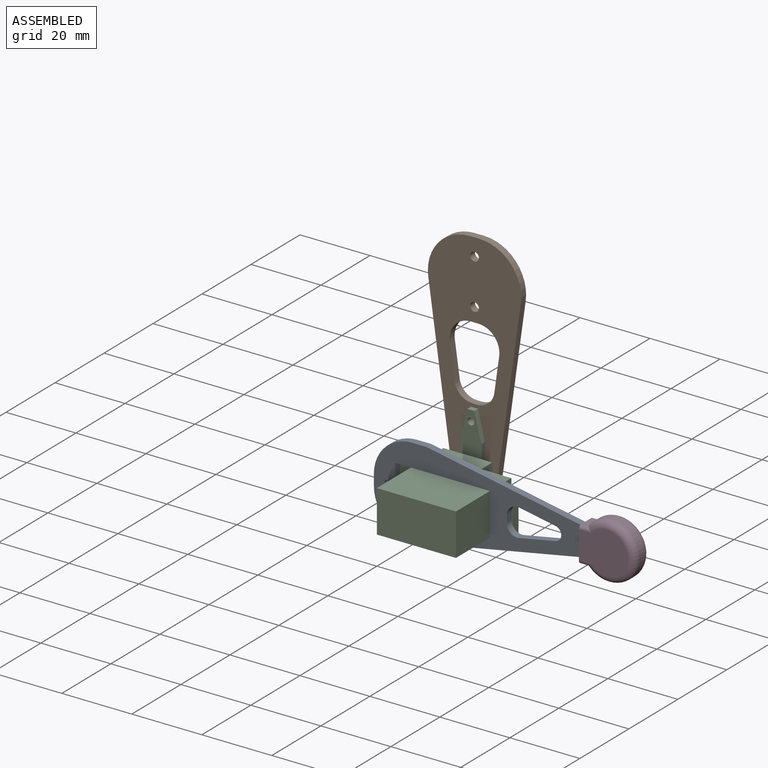
[diagram: assembled view]
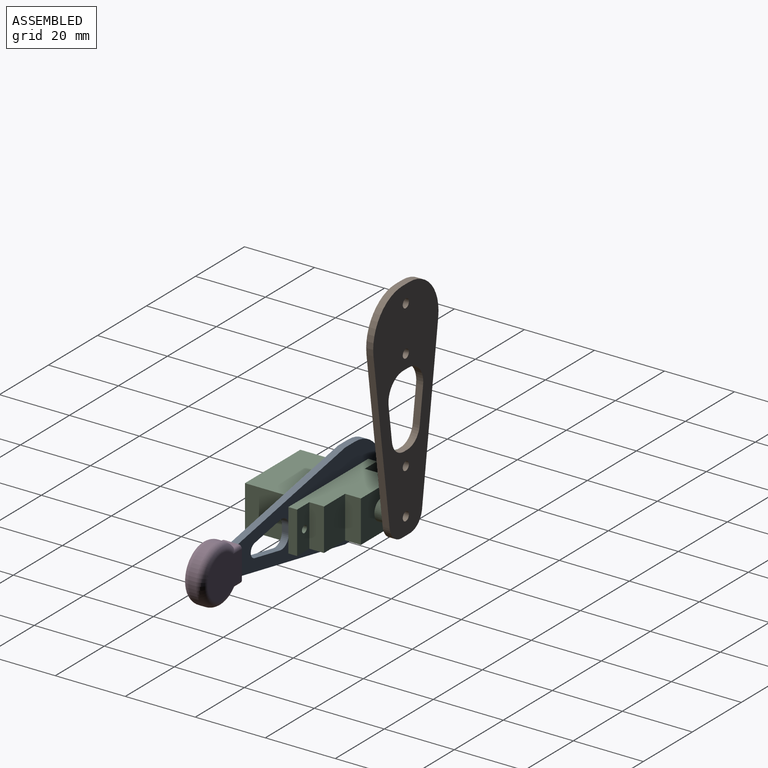
[diagram: assembled view, second angle]
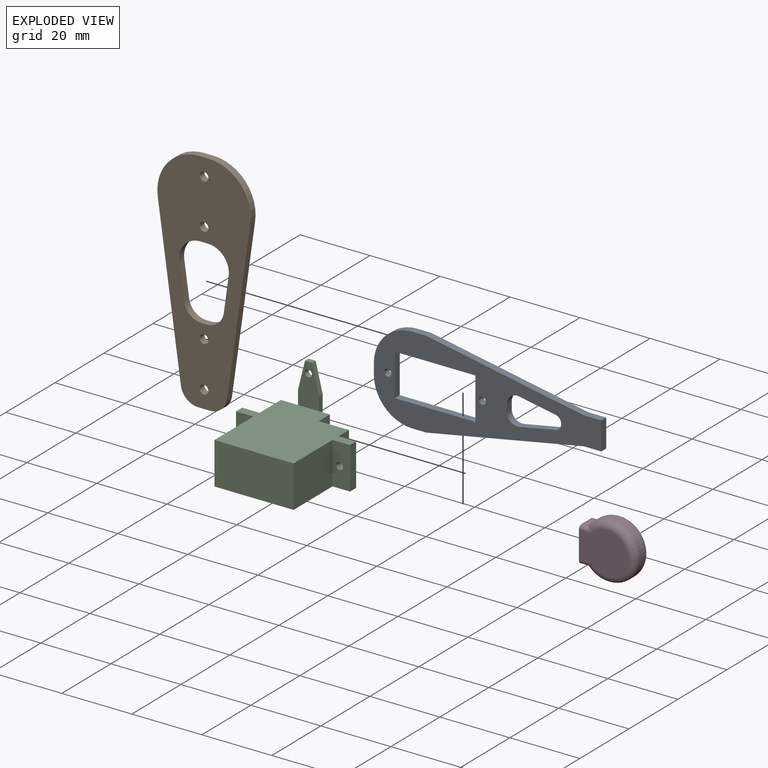
[diagram: exploded view]
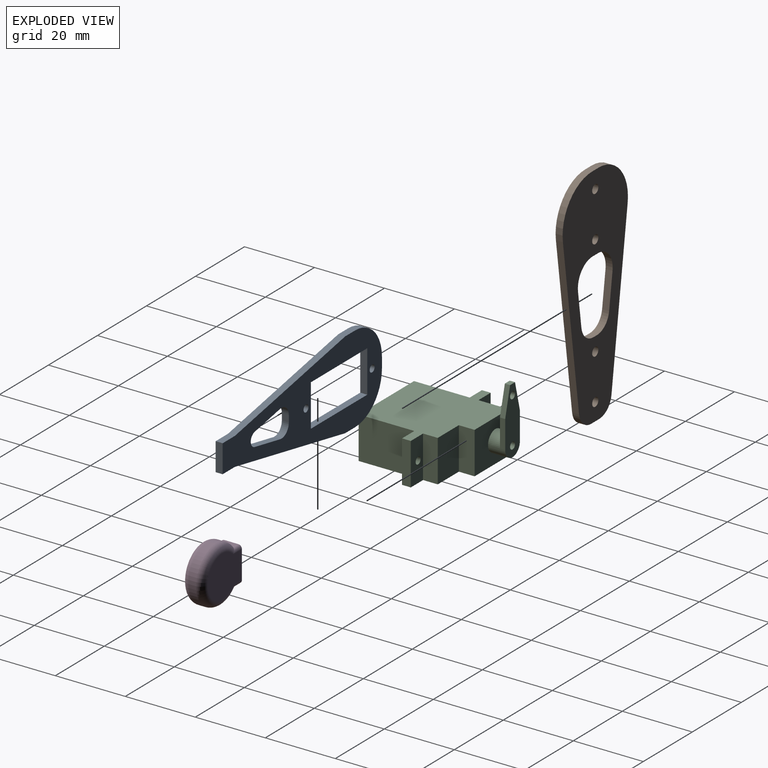
[diagram: exploded view, second angle]
ASSEMBLY  parts=4 mates=2
PART A: 24 faces, bbox 65x25x2 mm
  f0: cylinder r=1mm len=2mm, axis (0,0,-1), area 12.6mm2, adj f12,f13
  f1: plane 3x2mm, normal (1,0,0), area 6mm2, adj f12,f13,f14,f20
  f2: plane 4x2mm, normal (0,1,0), area 8mm2, adj f3,f12,f13,f14
  f3: plane 45x8.5mm, normal (-0.19,0.98,0), area 91.6mm2, adj f2,f4,f12,f13
  f4: plane 5x2mm, normal (0,1,0), area 10mm2, adj f3,f5,f12,f13
  f5: plane 8x2mm, normal (-1,0,0), area 16mm2, adj f4,f12,f13,f17
  f6: plane 10.36x2mm, normal (0.19,-0.98,0), area 21.1mm2, adj f12,f13,f21,f23
  f7: plane 2x1.95mm, normal (-1,0,0), area 3.9mm2, adj f12,f13,f22,f23
  f8: cylinder r=1mm len=2mm, axis (0,0,-1), area 12.6mm2, adj f12,f13
  f9: plane 12x2mm, normal (1,0,0), area 24mm2, adj f10,f12,f13,f19
  f10: plane 23x2mm, normal (0,-1,0), area 46mm2, adj f9,f11,f12,f13
  f11: plane 12x2mm, normal (-1,0,0), area 24mm2, adj f10,f12,f13,f19
  f12: plane 65x25mm, normal (0,0,1), area 733.1mm2, adj f0,f1,f2,f3,f4,f5,f6,f7
  f13: plane 65x25mm, normal (0,0,-1), area 733.1mm2, adj f0,f1,f2,f3,f4,f5,f6,f7
  f14: cylinder r=11mm len=11mm, axis (0,0,-1), area 34.6mm2, adj f1,f2,f12,f13
  f15: plane 4x2mm, normal (0,-1,0), area 8mm2, adj f12,f13,f16,f20
  f16: plane 45x8.5mm, normal (-0.19,-0.98,0), area 91.6mm2, adj f12,f13,f15,f17
  f17: plane 5x2mm, normal (0,-1,0), area 10mm2, adj f5,f12,f13,f16
  f18: plane 10.36x2mm, normal (0.19,0.98,0), area 21.1mm2, adj f12,f13,f21,f22
  f19: plane 23x2mm, normal (0,1,0), area 46mm2, adj f9,f11,f12,f13
  f20: cylinder r=11mm len=11mm, axis (0,0,-1), area 34.6mm2, adj f1,f12,f13,f15
  f21: cylinder r=2mm len=3.93mm, axis (0,0,1), area 11.1mm2, adj f6,f12,f13,f18
  f22: cylinder r=3mm len=3.56mm, axis (0,0,-1), area 10.5mm2, adj f7,f12,f13,f18
  f23: cylinder r=3mm len=3.56mm, axis (0,0,-1), area 10.5mm2, adj f6,f7,f12,f13
PART B: 22 faces, bbox 65x26.7x2 mm
  f0: plane 2.66x2mm, normal (1,0,0), area 5.3mm2, adj f10,f11,f13,f17
  f1: plane 47.03x6.61mm, normal (-0.14,0.99,0), area 95mm2, adj f10,f11,f12,f13
  f2: plane 3.31x2mm, normal (-1,0,0), area 6.6mm2, adj f10,f11,f12,f16
  f3: cylinder r=1.25mm len=2.5mm, axis (0,0,-1), area 15.7mm2, adj f10,f11
  f4: cylinder r=1.25mm len=2.5mm, axis (0,0,-1), area 15.7mm2, adj f10,f11
  f5: plane 2x1.41mm, normal (1,0,0), area 2.8mm2, adj f10,f11,f20,f21
  f6: plane 9.86x2mm, normal (0.14,-0.99,0), area 19.9mm2, adj f10,f11,f19,f21
  f7: plane 2.2x2mm, normal (-1,0,0), area 4.4mm2, adj f10,f11,f18,f19
  f8: cylinder r=1.25mm len=2.5mm, axis (0,0,-1), area 15.7mm2, adj f10,f11
  f9: cylinder r=1.25mm len=2.5mm, axis (0,0,-1), area 15.7mm2, adj f10,f11
  f10: plane 65x26.66mm, normal (0,0,1), area 1016.2mm2, adj f0,f1,f2,f3,f4,f5,f6,f7
  f11: plane 65x26.66mm, normal (0,0,-1), area 1016.2mm2, adj f0,f1,f2,f3,f4,f5,f6,f7
  f12: cylinder r=5mm len=4.95mm, axis (0,0,-1), area 14.3mm2, adj f1,f2,f10,f11
  f13: cylinder r=12mm len=13.67mm, axis (0,0,-1), area 41.1mm2, adj f0,f1,f10,f11
  f14: plane 47.03x6.61mm, normal (-0.14,-0.99,0), area 95mm2, adj f10,f11,f16,f17
  f15: plane 9.86x2mm, normal (0.14,0.99,0), area 19.9mm2, adj f10,f11,f18,f20
  f16: cylinder r=5mm len=4.95mm, axis (0,0,-1), area 14.3mm2, adj f2,f10,f11,f14
  f17: cylinder r=12mm len=13.67mm, axis (0,0,-1), area 41.1mm2, adj f0,f10,f11,f14
  f18: cylinder r=6mm len=6.84mm, axis (0,0,1), area 20.5mm2, adj f7,f10,f11,f15
  f19: cylinder r=6mm len=6.84mm, axis (0,0,1), area 20.5mm2, adj f6,f7,f10,f11
  f20: cylinder r=5mm len=4.95mm, axis (0,0,1), area 14.3mm2, adj f5,f10,f11,f15
  f21: cylinder r=5mm len=4.95mm, axis (0,0,1), area 14.3mm2, adj f5,f6,f10,f11
PART C: 29 faces, bbox 32.6x32x22 mm
  f0: plane 14x12mm, normal (0,1,0), area 139.7mm2, adj f1,f13,f14,f15,f16
  f1: plane 12x8.7mm, normal (-1,0,0), area 104.4mm2, adj f0,f2,f14,f15
  f2: plane 12x5mm, normal (0,1,0), area 56.9mm2, adj f1,f3,f14,f15,f28
  f3: plane 12x2.5mm, normal (-1,0,0), area 30mm2, adj f2,f4,f14,f15
  f4: plane 12x5mm, normal (0,-1,0), area 56.9mm2, adj f3,f5,f14,f15,f28
  f5: plane 15.9x12mm, normal (-1,0,0), area 190.8mm2, adj f4,f6,f14,f15
  f6: plane 22.6x12mm, normal (0,-1,0), area 271.2mm2, adj f5,f7,f14,f15
  f7: plane 15.9x12mm, normal (1,0,0), area 190.8mm2, adj f6,f8,f14,f15
  f8: plane 12x5mm, normal (0,-1,0), area 56.9mm2, adj f7,f9,f14,f15,f27
  f9: plane 12x2.5mm, normal (1,0,0), area 30mm2, adj f8,f10,f14,f15
  f10: plane 12x5mm, normal (0,1,0), area 56.9mm2, adj f9,f11,f14,f15,f27
  f11: plane 12x4.2mm, normal (1,0,0), area 50.4mm2, adj f10,f12,f14,f15
  f12: plane 12x8.6mm, normal (0,1,0), area 103.2mm2, adj f11,f13,f14,f15
  f13: plane 12x4.5mm, normal (1,0,0), area 54mm2, adj f0,f12,f14,f15
  f14: plane 32.6x27.1mm, normal (0,0,1), area 598.8mm2, adj f0,f1,f2,f3,f4,f5,f6,f7
  f15: plane 32.6x27.1mm, normal (0,0,-1), area 598.8mm2, adj f0,f1,f2,f3,f4,f5,f6,f7
  f16: cylinder r=3mm len=6mm, axis (0,-1,0), area 78.2mm2, adj f0,f17,f19,f20,f23
  f17: plane 16x6mm, normal (0,-1,0), area 62.7mm2, adj f16,f18,f19,f20,f21,f25,f26
  f18: plane 2x1.5mm, normal (0,0,1), area 3mm2, adj f17,f23,f25,f26
  f19: plane 8x1.5mm, normal (1,0,0), area 12mm2, adj f16,f17,f23,f25
  f20: plane 8x1.5mm, normal (-1,0,0), area 12mm2, adj f16,f17,f23,f26
  f21: cylinder r=1mm len=2mm, axis (0,-1,0), area 9.4mm2, adj f17,f23
  f22: cylinder r=1mm len=2mm, axis (0,-1,0), area 9.4mm2, adj f23,f24
  f23: plane 19x6mm, normal (0,1,0), area 87.9mm2, adj f16,f18,f19,f20,f21,f22,f25,f26
  f24: plane 2x2mm, normal (0,1,0), area 3.1mm2, adj f22
  f25: plane 8x2mm, normal (0.97,0,0.24), area 12.4mm2, adj f17,f18,f19,f23
  f26: plane 8x2mm, normal (-0.97,0,0.24), area 12.4mm2, adj f17,f18,f20,f23
  f27: cylinder r=1mm len=2.5mm, axis (0,-1,0), area 15.7mm2, adj f8,f10
  f28: cylinder r=1mm len=2.5mm, axis (0,-1,0), area 15.7mm2, adj f2,f4
PART D: 22 faces, bbox 17.3x6x16.7 mm
  f0: plane 4x2.11mm, normal (1,0,0), area 7.3mm2, adj f1,f2,f10,f11,f12,f13
  f1: cylinder r=8mm len=14.24mm, axis (0,1,0), area 39.4mm2, adj f0,f10,f11,f15
  f2: plane 10x6mm, normal (0,0,-1), area 43.1mm2, adj f0,f3,f4,f5,f6,f7,f12,f13
  f3: plane 14x11.99mm, normal (0,-1,0), area 132.8mm2, adj f2,f11,f13,f19,f21
  f4: plane 14x11.99mm, normal (0,1,0), area 132.8mm2, adj f2,f10,f12,f18,f20
  f5: plane 8x5.01mm, normal (0,1,0), area 38.3mm2, adj f2,f7,f8,f9,f16,f17
  f6: plane 8x5.01mm, normal (0,-1,0), area 38.3mm2, adj f2,f7,f8,f9,f16,f17
  f7: plane 3x2mm, normal (-1,0,0), area 6mm2, adj f2,f5,f6,f9
  f8: plane 4x2mm, normal (0,0,-1), area 8mm2, adj f5,f6,f9,f17
  f9: cylinder r=2mm len=2mm, axis (0,-1,0), area 6.3mm2, adj f5,f6,f7,f8
  f10: torus R=6mm, axis (0,-1,0), area 55.5mm2, adj f0,f1,f4,f12,f18
  f11: torus R=6mm, axis (0,-1,0), area 55.5mm2, adj f0,f1,f3,f13,f19
  f12: cylinder r=1mm len=3.53mm, axis (0,0,1), area 4.4mm2, adj f0,f2,f4,f10
  f13: cylinder r=1mm len=3.53mm, axis (0,0,-1), area 4.4mm2, adj f0,f2,f3,f11
  f14: plane 4x2.11mm, normal (-1,0,0), area 7.3mm2, adj f2,f15,f18,f19,f20,f21
  f15: cylinder r=8mm len=14.24mm, axis (0,1,0), area 39.4mm2, adj f1,f14,f18,f19
  f16: plane 3x2mm, normal (1,0,0), area 6mm2, adj f2,f5,f6,f17
  f17: cylinder r=2mm len=2mm, axis (0,-1,0), area 6.3mm2, adj f5,f6,f8,f16
  f18: torus R=6mm, axis (0,-1,0), area 55.5mm2, adj f4,f10,f14,f15,f20
  f19: torus R=6mm, axis (0,-1,0), area 55.5mm2, adj f3,f11,f14,f15,f21
  f20: cylinder r=1mm len=3.53mm, axis (0,0,1), area 4.4mm2, adj f2,f4,f14,f18
  f21: cylinder r=1mm len=3.53mm, axis (0,0,-1), area 4.4mm2, adj f2,f3,f14,f19
PLACE A rot(axis=(0,0.71,0.71),180deg) t=(34.4,13.9,6)mm
PLACE B rot(axis=(0.58,-0.58,0.58),120deg) t=(5.5,34,21)mm
PLACE C at identity fixed
PLACE D rot(axis=(0,1,0),90deg) t=(49.4,17.9,6)mm
MATE fastened A.f13 <-> D.f5  axis (0,-1,0) through (54.4,13.9,6)mm
MATE fastened B.f4 <-> C.f21  axis (0,1,0) through (5.5,32,19)mm
